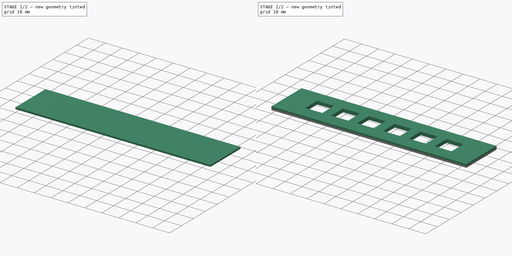
[diagram: build sequence overview — one tinted view per stage of 2, left to right]
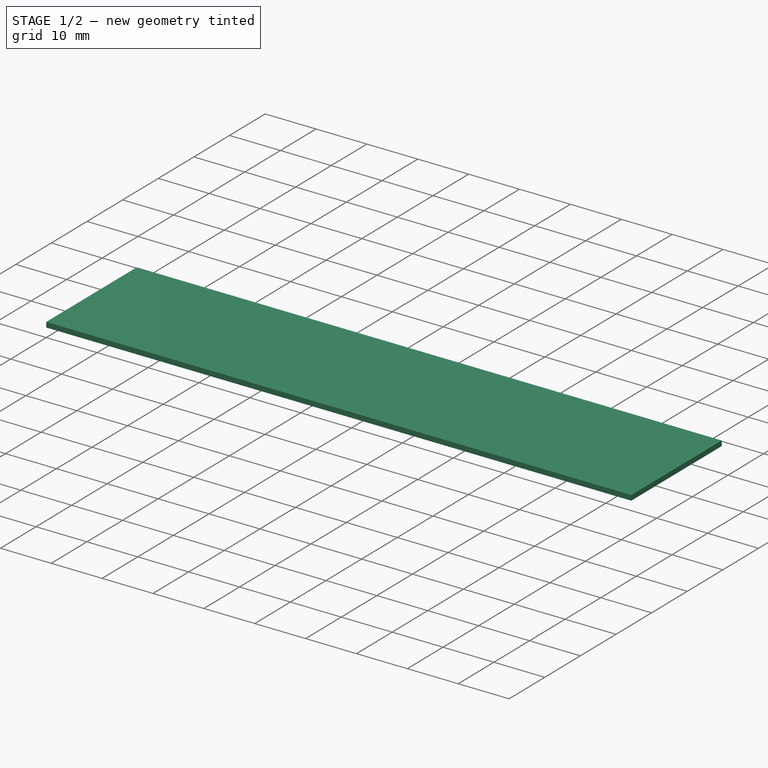
[diagram: stage 1 of 2 — iso view after this stage's code; geometry added in this stage tinted green]
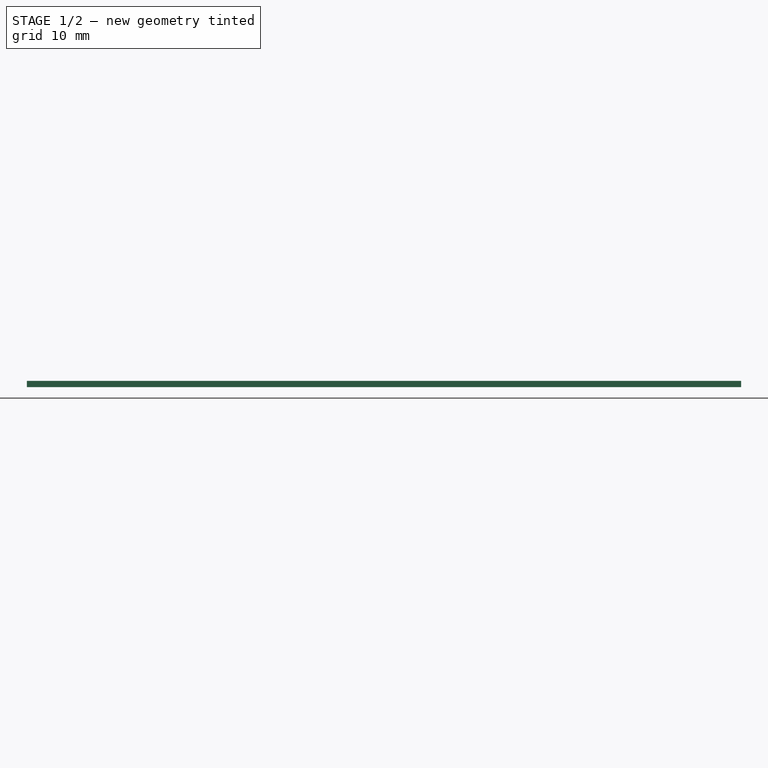
[diagram: stage 1 of 2 — front view after this stage's code; geometry added in this stage tinted green]
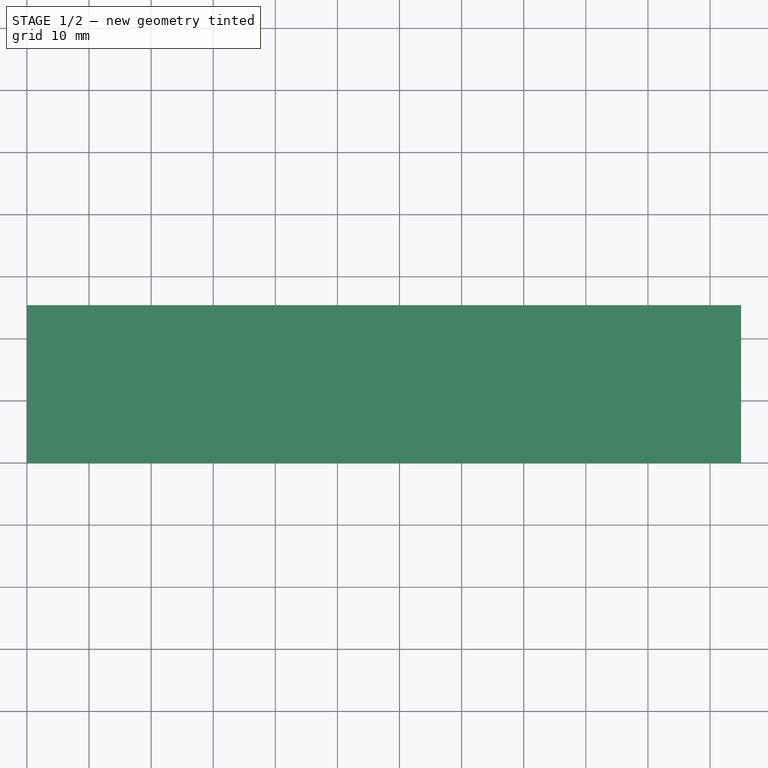
[diagram: stage 1 of 2 — top view after this stage's code; geometry added in this stage tinted green]
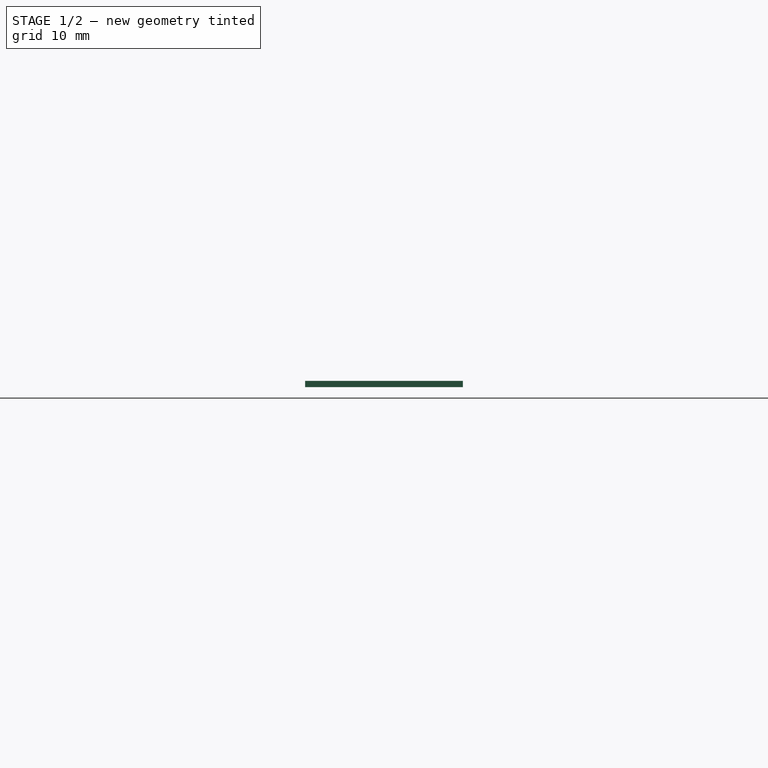
[diagram: stage 1 of 2 — right view after this stage's code; geometry added in this stage tinted green]
FCSTD DOCUMENT  (FreeCAD 0.17R13522 (Git))
Label: S21
License: All rights reserved
LicenseURL: http://en.wikipedia.org/wiki/All_rights_reserved
objects: Part::Box×1, PartDesign::FeatureBase×1, Sketcher::SketchObject×1, PartDesign::Pocket×1, PartDesign::Pad×1, PartDesign::Body×1
note: 8 computed .brp shape members not serialized (recipe doc carries the construction recipe); baked Part::Feature solids carry a one-line shape summary decoded from their .brp

FEATURE [Part::Box] Box  label="Cube"
  AttacherType = Attacher::AttachEngine3D
  Height = 1
  Length = 115
  Width = 25.4
FEATURE [PartDesign::FeatureBase] BaseFeature
  BaseFeature = -> Box
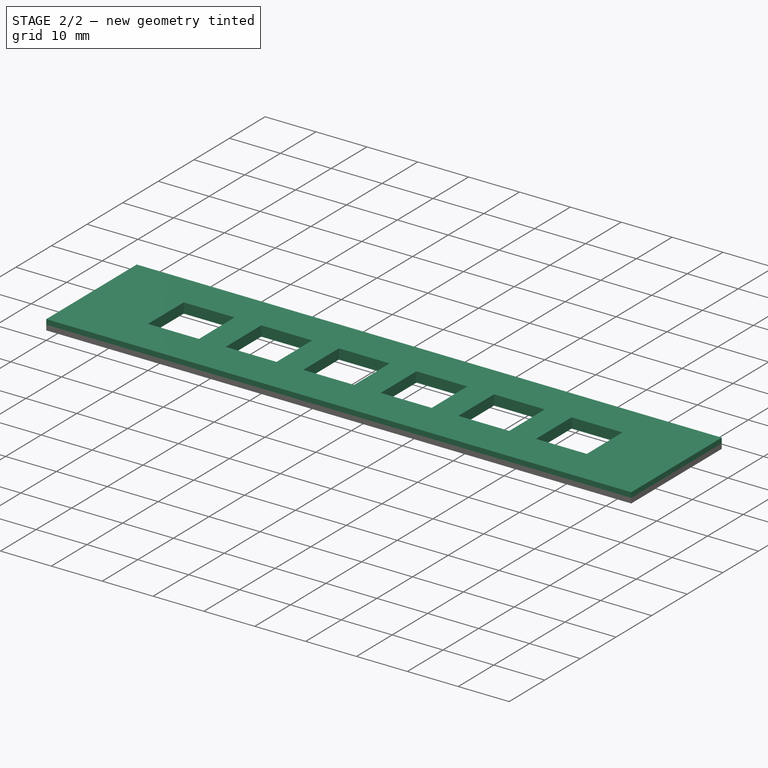
[diagram: stage 2 of 2 — iso view after this stage's code; geometry added in this stage tinted green]
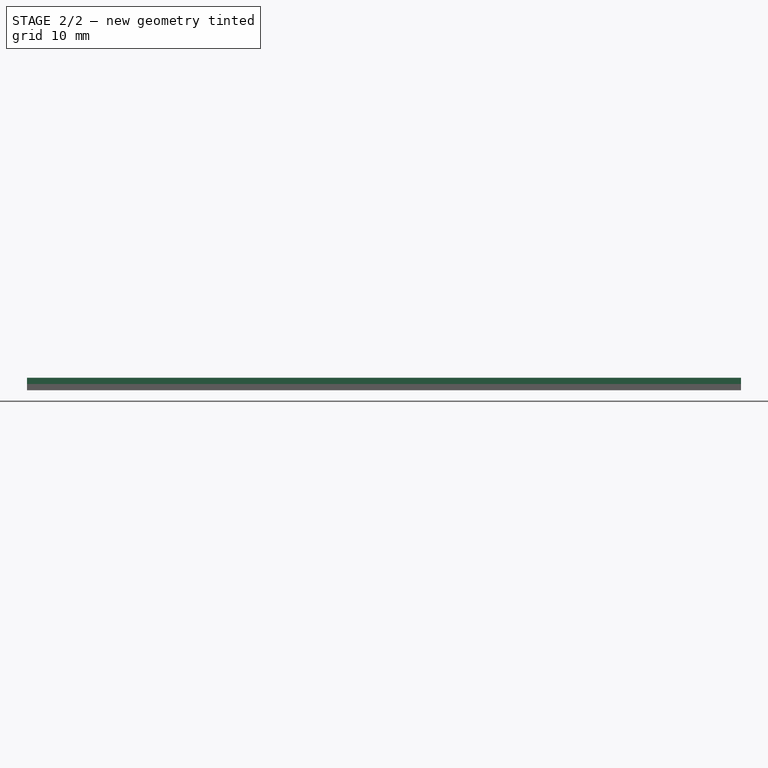
[diagram: stage 2 of 2 — front view after this stage's code; geometry added in this stage tinted green]
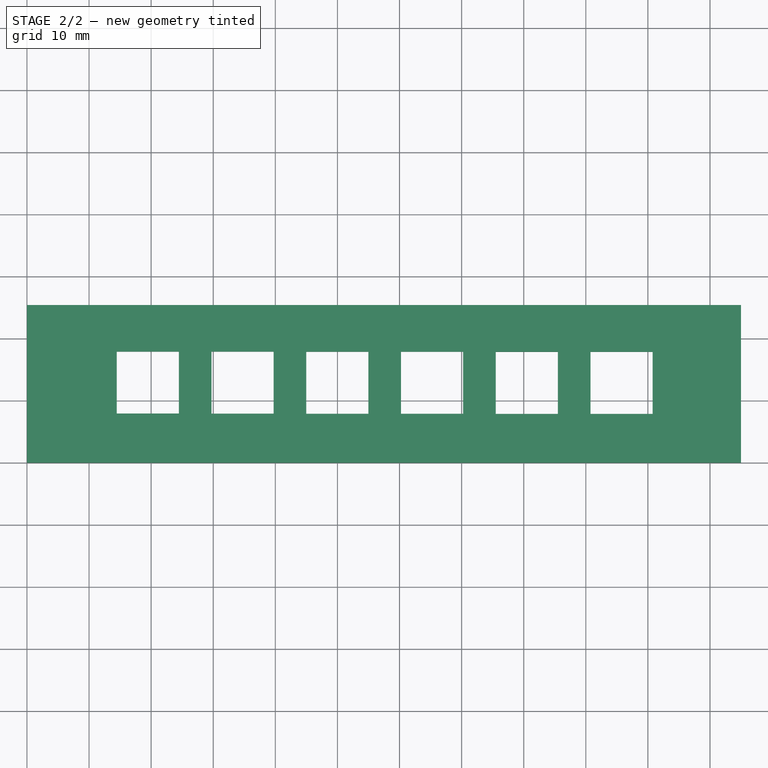
[diagram: stage 2 of 2 — top view after this stage's code; geometry added in this stage tinted green]
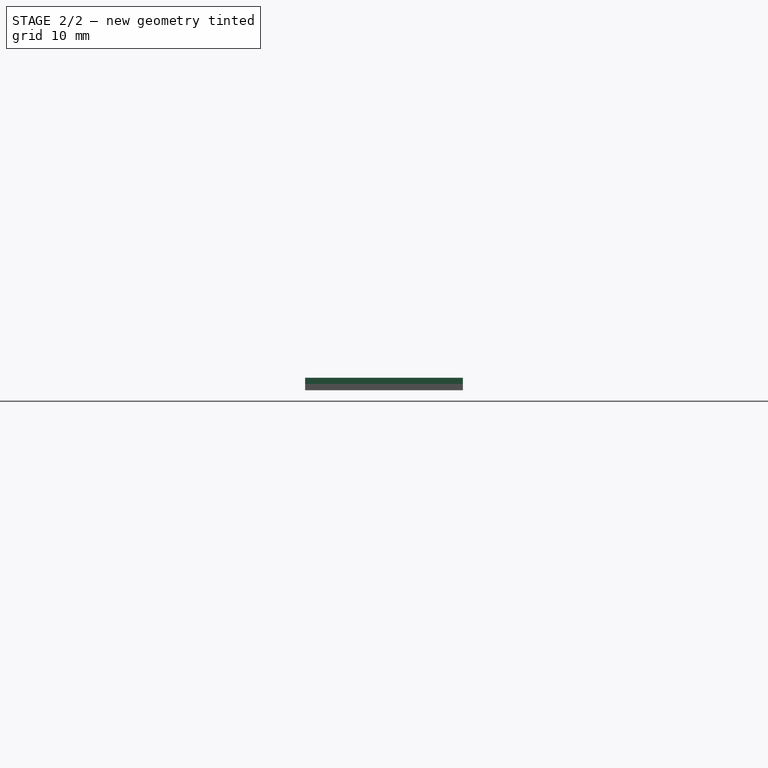
[diagram: stage 2 of 2 — right view after this stage's code; geometry added in this stage tinted green]
FEATURE [Sketcher::SketchObject] Sketch
  MapMode = 5
  Placement = pos=(0,0,1) rot=(0,0,1;0rad)
  Support = -> [BaseFeature]
  sketch-geometry (29):
    g0: LineSegment StartX=14.4675 StartY=17.9217 StartZ=0 EndX=24.4675 EndY=17.9217 EndZ=0
    g1: LineSegment StartX=24.4675 StartY=17.9217 StartZ=0 EndX=24.4675 EndY=7.92172 EndZ=0
    g2: LineSegment StartX=24.4675 StartY=7.92172 StartZ=0 EndX=14.4675 EndY=7.92172 EndZ=0
    g3: LineSegment StartX=14.4675 StartY=7.92172 StartZ=0 EndX=14.4675 EndY=17.9217 EndZ=0
    g4: LineSegment StartX=29.7261 StartY=17.9098 StartZ=0 EndX=39.7261 EndY=17.9098 EndZ=0
    g5: LineSegment StartX=39.7261 StartY=17.9098 StartZ=0 EndX=39.7261 EndY=7.90977 EndZ=0
    g6: LineSegment StartX=39.7261 StartY=7.90977 StartZ=0 EndX=29.7261 EndY=7.90977 EndZ=0
    g7: LineSegment StartX=29.7261 StartY=7.90977 StartZ=0 EndX=29.7261 EndY=17.9098 EndZ=0
    g8: LineSegment [constr] StartX=14.4675 StartY=17.9217 StartZ=0 EndX=29.7261 EndY=17.9098 EndZ=0
    g9: LineSegment StartX=44.9846 StartY=17.8978 StartZ=0 EndX=54.9846 EndY=17.8978 EndZ=0
    g10: LineSegment StartX=54.9846 StartY=17.8978 StartZ=0 EndX=54.9846 EndY=7.89782 EndZ=0
    g11: LineSegment StartX=54.9846 StartY=7.89782 StartZ=0 EndX=44.9846 EndY=7.89782 EndZ=0
    g12: LineSegment StartX=44.9846 StartY=7.89782 StartZ=0 EndX=44.9846 EndY=17.8978 EndZ=0
    g13: LineSegment [constr] StartX=29.7261 StartY=17.9098 StartZ=0 EndX=44.9846 EndY=17.8978 EndZ=0
    g14: LineSegment StartX=60.2432 StartY=17.8859 StartZ=0 EndX=70.2432 EndY=17.8859 EndZ=0
    g15: LineSegment StartX=70.2432 StartY=17.8859 StartZ=0 EndX=70.2432 EndY=7.88588 EndZ=0
    g16: LineSegment StartX=70.2432 StartY=7.88588 StartZ=0 EndX=60.2432 EndY=7.88588 EndZ=0
    g17: LineSegment StartX=60.2432 StartY=7.88588 StartZ=0 EndX=60.2432 EndY=17.8859 EndZ=0
    g18: LineSegment [constr] StartX=44.9846 StartY=17.8978 StartZ=0 EndX=60.2432 EndY=17.8859 EndZ=0
    g19: LineSegment StartX=75.5017 StartY=17.8739 StartZ=0 EndX=85.5017 EndY=17.8739 EndZ=0
    g20: LineSegment StartX=85.5017 StartY=17.8739 StartZ=0 EndX=85.5017 EndY=7.87393 EndZ=0
    g21: LineSegment StartX=85.5017 StartY=7.87393 StartZ=0 EndX=75.5017 EndY=7.87393 EndZ=0
    g22: LineSegment StartX=75.5017 StartY=7.87393 StartZ=0 EndX=75.5017 EndY=17.8739 EndZ=0
    g23: LineSegment [constr] StartX=60.2432 StartY=17.8859 StartZ=0 EndX=75.5017 EndY=17.8739 EndZ=0
    g24: LineSegment StartX=90.7603 StartY=17.862 StartZ=0 EndX=100.76 EndY=17.862 EndZ=0
    g25: LineSegment StartX=100.76 StartY=17.862 StartZ=0 EndX=100.76 EndY=7.86199 EndZ=0
    g26: LineSegment StartX=100.76 StartY=7.86199 StartZ=0 EndX=90.7603 EndY=7.86199 EndZ=0
    g27: LineSegment StartX=90.7603 StartY=7.86199 StartZ=0 EndX=90.7603 EndY=17.862 EndZ=0
    g28: LineSegment [constr] StartX=75.5017 StartY=17.8739 StartZ=0 EndX=90.7603 EndY=17.862 EndZ=0
  constraints (80):
    c: Coincident(g0,g1)
    c: Coincident(g1,g2)
    c: Coincident(g2,g3)
    c: Coincident(g3,g0)
    c: Horizontal(g0)
    c: Horizontal(g2)
    c: Vertical(g1)
    c: Vertical(g3)
    c: DistanceX(g0,g0) = 10
    c: DistanceY(g3,g3) = 10
    c: Coincident(g4,g5)
    c: Coincident(g5,g6)
    c: Coincident(g6,g7)
    c: Coincident(g7,g4)
    c: Horizontal(g4)
    c: Horizontal(g6)
    c: Vertical(g5)
    c: Vertical(g7)
    c: Equal(g0,g4) = 10
    c: Equal(g3,g7) = 10
    c: Coincident(g0,g8)
    c: Coincident(g4,g8)
    c: Distance(g8) = 15.2586
    c: Angle(g8) = -0.000782904
    c: Coincident(g9,g10)
    c: Coincident(g10,g11)
    c: Coincident(g11,g12)
    c: Coincident(g12,g9)
    c: Horizontal(g9)
    c: Horizontal(g11)
    c: Vertical(g10)
    c: Vertical(g12)
    c: Equal(g0,g9) = 10
    c: Equal(g3,g12) = 10
    c: Coincident(g4,g13)
    c: Coincident(g9,g13)
    c: Equal(g8,g13)
    c: Parallel(g13,g8)
    c: Coincident(g14,g15)
    c: Coincident(g15,g16)
    c: Coincident(g16,g17)
    c: Coincident(g17,g14)
    c: Horizontal(g14)
    c: Horizontal(g16)
    c: Vertical(g15)
    c: Vertical(g17)
    c: Equal(g0,g14) = 10
    c: Equal(g3,g17) = 10
    c: Coincident(g9,g18)
    c: Coincident(g14,g18)
    c: Equal(g8,g18)
    c: Parallel(g18,g8)
    c: Coincident(g19,g20)
    c: Coincident(g20,g21)
    c: Coincident(g21,g22)
    c: Coincident(g22,g19)
    c: Horizontal(g19)
    c: Horizontal(g21)
    c: Vertical(g20)
    c: Vertical(g22)
    c: Equal(g0,g19) = 10
    c: Equal(g3,g22) = 10
    c: Coincident(g14,g23)
    c: Coincident(g19,g23)
    c: Equal(g8,g23)
    c: Parallel(g23,g8)
    c: Coincident(g24,g25)
    c: Coincident(g25,g26)
    c: Coincident(g26,g27)
    c: Coincident(g27,g24)
    c: Horizontal(g24)
    c: Horizontal(g26)
    c: Vertical(g25)
    c: Vertical(g27)
    c: Equal(g0,g24) = 10
    c: Equal(g3,g27) = 10
    c: Coincident(g19,g28)
    c: Coincident(g24,g28)
    c: Equal(g8,g28)
    c: Parallel(g28,g8)
FEATURE [PartDesign::Pocket] Pocket
  BaseFeature = -> BaseFeature
  Length = 5
  Length2 = 100
  Profile = -> Sketch
  Type = 1
FEATURE [PartDesign::Pad] Pad
  BaseFeature = -> Pocket
  Length = 1
  Length2 = 100
  Profile = -> Pocket [Face3]
  Type = 0
FEATURE [PartDesign::Body] Body
  BaseFeature = -> Box
  Group = -> [BaseFeature,Sketch,Pocket,Pad]
  Origin = -> Origin
  Tip = -> Pad
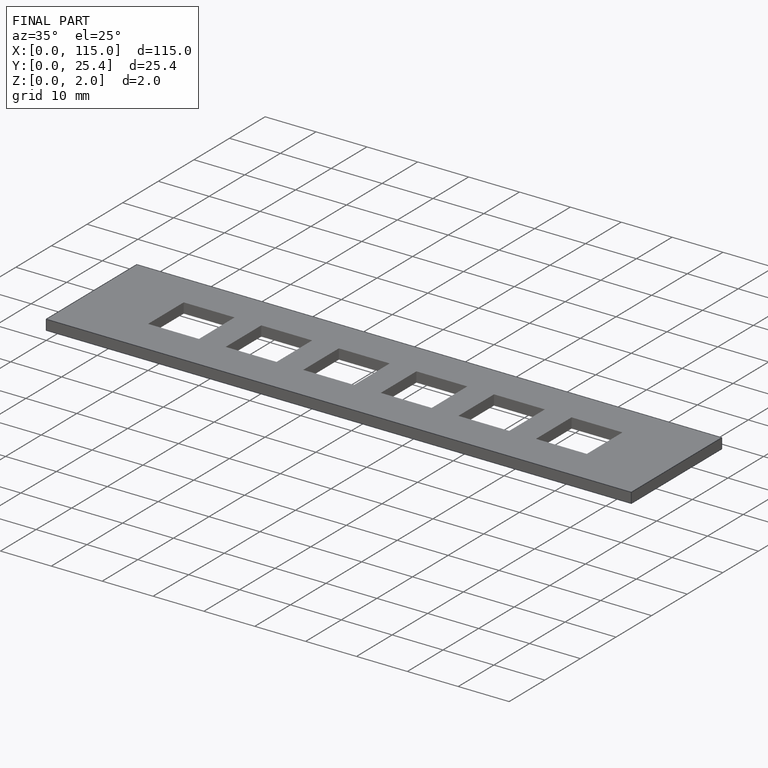
[diagram: finished part — iso view with bounding-box wireframe]
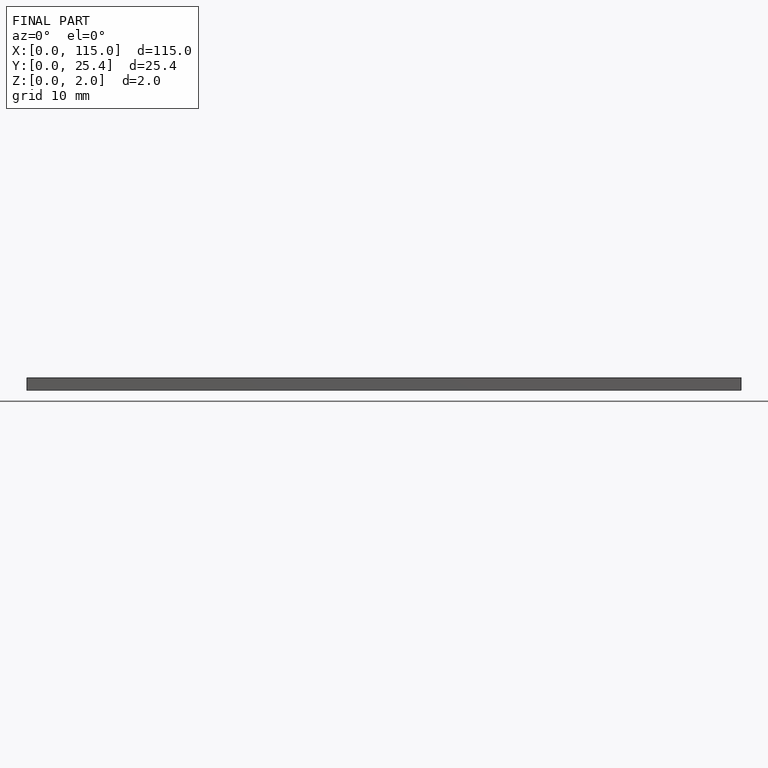
[diagram: finished part — front view with bounding-box wireframe]
